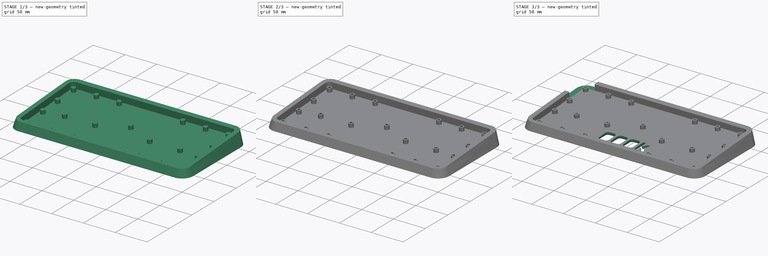
[diagram: build sequence overview — one tinted view per stage of 3, left to right]
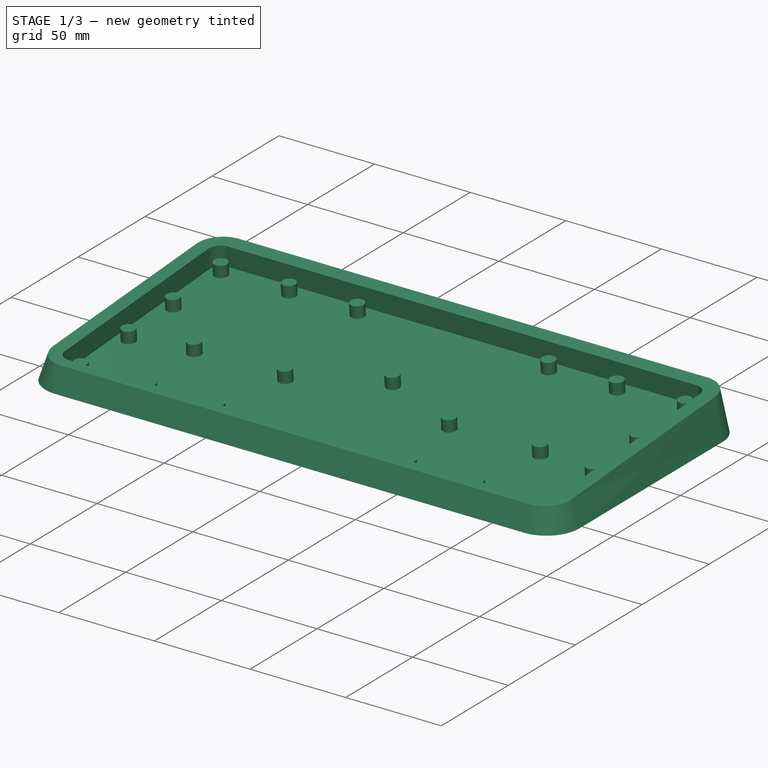
[diagram: stage 1 of 3 — iso view after this stage's code; geometry added in this stage tinted green]
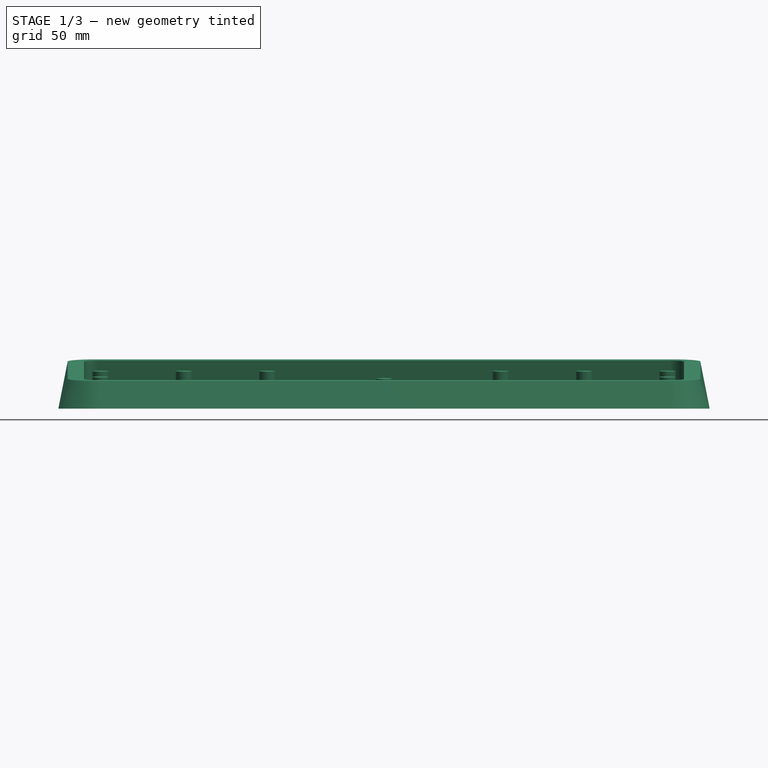
[diagram: stage 1 of 3 — front view after this stage's code; geometry added in this stage tinted green]
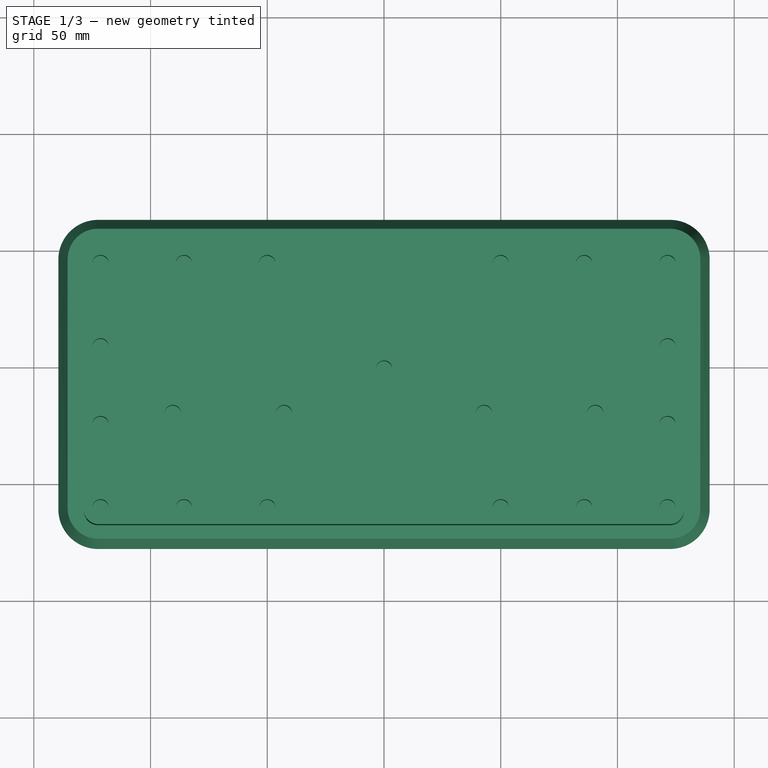
[diagram: stage 1 of 3 — top view after this stage's code; geometry added in this stage tinted green]
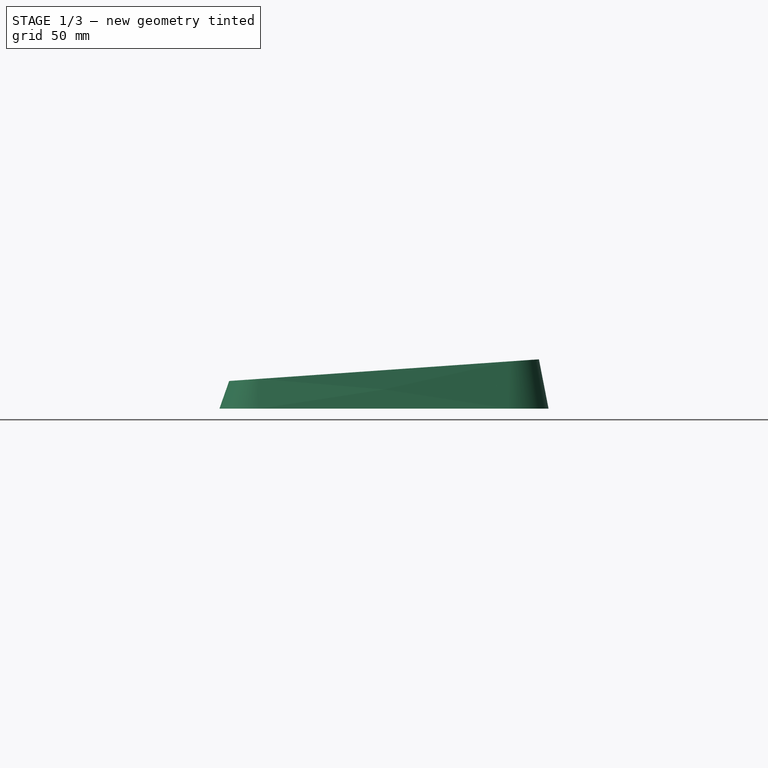
[diagram: stage 1 of 3 — right view after this stage's code; geometry added in this stage tinted green]
FCSTD DOCUMENT  (FreeCAD 0.20R)
Label: case
License: All rights reserved
LicenseURL: http://en.wikipedia.org/wiki/All_rights_reserved
objects: Sketcher::SketchObject×7, PartDesign::Pocket×3, PartDesign::AdditiveLoft×1, PartDesign::Pad×1, PartDesign::Hole×1, PartDesign::Chamfer×1, PartDesign::Fillet×1, PartDesign::Body×1
note: 24 computed .brp shape members not serialized (recipe doc carries the construction recipe); baked Part::Feature solids carry a one-line shape summary decoded from their .brp

FEATURE [Sketcher::SketchObject] Sketch001  label="Ext3"
  FullyConstrained = false
  MapMode = 5
  Support = -> [XY_Plane]
  sketch-geometry (8):
    g0: ArcOfCircle CenterX=-122.5 CenterY=46.3562 CenterZ=0 NormalX=0 NormalY=0 NormalZ=1 AngleXU=0 Radius=17 StartAngle=1.5708 EndAngle=3.14159
    g1: LineSegment StartX=-139.5 StartY=-60.6438 StartZ=0 EndX=-139.5 EndY=46.3562 EndZ=0
    g2: ArcOfCircle CenterX=-122.5 CenterY=-60.6438 CenterZ=0 NormalX=0 NormalY=0 NormalZ=1 AngleXU=0 Radius=17 StartAngle=3.14159 EndAngle=4.71239
    g3: LineSegment StartX=-122.5 StartY=63.3562 StartZ=0 EndX=122.5 EndY=63.3562 EndZ=0
    g4: LineSegment StartX=-122.5 StartY=-77.6438 StartZ=0 EndX=122.5 EndY=-77.6438 EndZ=0
    g5: LineSegment StartX=139.5 StartY=46.3562 StartZ=0 EndX=139.5 EndY=-60.6438 EndZ=0
    g6: ArcOfCircle CenterX=122.5 CenterY=46.3562 CenterZ=0 NormalX=0 NormalY=0 NormalZ=1 AngleXU=0 Radius=17 StartAngle=0 EndAngle=1.5708
    g7: ArcOfCircle CenterX=122.5 CenterY=-60.6438 CenterZ=0 NormalX=0 NormalY=0 NormalZ=1 AngleXU=0 Radius=17 StartAngle=4.71239 EndAngle=6.28319
  constraints (8):
    c: Coincident(g1,g2)
    c: Coincident(g0,g1)
    c: Coincident(g2,g4)
    c: Coincident(g0,g3)
    c: Coincident(g4,g7)
    c: Coincident(g3,g6)
    c: Coincident(g5,g7)
    c: Coincident(g5,g6)
FEATURE [Sketcher::SketchObject] Sketch002  label="Ext2"
  AttachmentOffset = pos=(0,0,17) rot=(1,0,0;0.069813rad)
  FullyConstrained = false
  MapMode = 5
  Placement = pos=(0,0,17) rot=(1,0,0;0.069813rad)
  Support = -> [XY_Plane]
  sketch-geometry (8):
    g0: ArcOfCircle CenterX=-122.5 CenterY=46.3562 CenterZ=0 NormalX=0 NormalY=0 NormalZ=1 AngleXU=0 Radius=13 StartAngle=1.5708 EndAngle=3.14159
    g1: ArcOfCircle CenterX=122.5 CenterY=46.3562 CenterZ=0 NormalX=0 NormalY=0 NormalZ=1 AngleXU=0 Radius=13 StartAngle=0 EndAngle=1.5708
    g2: LineSegment StartX=135.5 StartY=46.3562 StartZ=0 EndX=135.5 EndY=-60.6438 EndZ=0
    g3: ArcOfCircle CenterX=122.5 CenterY=-60.6438 CenterZ=0 NormalX=0 NormalY=0 NormalZ=1 AngleXU=0 Radius=13 StartAngle=4.71239 EndAngle=6.28319
    g4: LineSegment StartX=-122.5 StartY=-73.6438 StartZ=0 EndX=122.5 EndY=-73.6438 EndZ=0
    g5: ArcOfCircle CenterX=-122.5 CenterY=-60.6438 CenterZ=0 NormalX=0 NormalY=0 NormalZ=1 AngleXU=0 Radius=13 StartAngle=3.14159 EndAngle=4.71239
    g6: LineSegment StartX=-135.5 StartY=-60.6438 StartZ=0 EndX=-135.5 EndY=46.3562 EndZ=0
    g7: LineSegment StartX=-122.5 StartY=59.3562 StartZ=0 EndX=122.5 EndY=59.3562 EndZ=0
  constraints (8):
    c: Coincident(g5,g6)
    c: Coincident(g0,g6)
    c: Coincident(g4,g5)
    c: Coincident(g0,g7)
    c: Coincident(g3,g4)
    c: Coincident(g1,g7)
    c: Coincident(g2,g3)
    c: Coincident(g1,g2)
FEATURE [PartDesign::AdditiveLoft] AdditiveLoft
  Closed = true
  Profile = -> Sketch001
  Ruled = true
  Sections = -> [Sketch002]
FEATURE [Sketcher::SketchObject] Sketch003  label="Ext1"
  FullyConstrained = false
  MapMode = 5
  Placement = pos=(0,-1.18297,16.9173) rot=(1,0,0;0.069813rad)
  Support = -> [AdditiveLoft]
  sketch-geometry (8):
    g0: ArcOfCircle CenterX=122.5 CenterY=-60.6438 CenterZ=0 NormalX=0 NormalY=0 NormalZ=1 AngleXU=0 Radius=6 StartAngle=4.71239 EndAngle=6.28319
    g1: LineSegment StartX=128.5 StartY=46.3562 StartZ=0 EndX=128.5 EndY=-60.6438 EndZ=0
    g2: ArcOfCircle CenterX=-122.5 CenterY=46.3562 CenterZ=0 NormalX=0 NormalY=0 NormalZ=1 AngleXU=0 Radius=6 StartAngle=1.5708 EndAngle=3.14159
    g3: LineSegment StartX=-128.5 StartY=-60.6438 StartZ=0 EndX=-128.5 EndY=46.3562 EndZ=0
    g4: ArcOfCircle CenterX=-122.5 CenterY=-60.6438 CenterZ=0 NormalX=0 NormalY=0 NormalZ=1 AngleXU=0 Radius=6 StartAngle=3.14159 EndAngle=4.71239
    g5: LineSegment StartX=-122.5 StartY=-66.6438 StartZ=0 EndX=122.5 EndY=-66.6438 EndZ=0
    g6: LineSegment StartX=-122.5 StartY=52.3562 StartZ=0 EndX=122.5 EndY=52.3562 EndZ=0
    g7: ArcOfCircle CenterX=122.5 CenterY=46.3562 CenterZ=0 NormalX=0 NormalY=0 NormalZ=1 AngleXU=0 Radius=6 StartAngle=0 EndAngle=1.5708
  constraints (8):
    c: Coincident(g3,g4)
    c: Coincident(g2,g3)
    c: Coincident(g4,g5)
    c: Coincident(g2,g6)
    c: Coincident(g0,g5)
    c: Coincident(g6,g7)
    c: Coincident(g0,g1)
    c: Coincident(g1,g7)
FEATURE [PartDesign::Pocket] Pocket
  BaseFeature = -> AdditiveLoft
  Direction = (0,0.0697565,-0.997564)
  Length = 10
  Length2 = 5
  Profile = -> Sketch003
  ReferenceAxis = -> Sketch003 [N_Axis]
  Type = 0
FEATURE [Sketcher::SketchObject] Sketch  label="Troutrou"
  FullyConstrained = false
  MapMode = 5
  Placement = pos=(0,-0.485407,6.94164) rot=(1,0,0;0.069813rad)
  Support = -> [Pocket]
  sketch-geometry (21):
    g0: Circle CenterX=-50.0063 CenterY=-59.5313 CenterZ=0 NormalX=0 NormalY=0 NormalZ=-1 AngleXU=0 Radius=3.5
    g1: Circle CenterX=-42.8626 CenterY=-19.0501 CenterZ=0 NormalX=0 NormalY=0 NormalZ=-1 AngleXU=0 Radius=3.5
    g2: Circle CenterX=-50.0062 CenterY=45.2438 CenterZ=0 NormalX=0 NormalY=0 NormalZ=-1 AngleXU=0 Radius=3.5
    g3: Circle CenterX=-85.725 CenterY=45.2438 CenterZ=0 NormalX=0 NormalY=0 NormalZ=-1 AngleXU=0 Radius=3.5
    g4: Circle CenterX=-90.4876 CenterY=-19.0501 CenterZ=0 NormalX=0 NormalY=0 NormalZ=-1 AngleXU=0 Radius=3.5
    g5: Circle CenterX=-85.7251 CenterY=-59.5313 CenterZ=0 NormalX=0 NormalY=0 NormalZ=-1 AngleXU=0 Radius=3.5
    g6: Circle CenterX=-121.444 CenterY=-59.5313 CenterZ=0 NormalX=0 NormalY=0 NormalZ=-1 AngleXU=0 Radius=3.5
    g7: Circle CenterX=-121.444 CenterY=-23.8125 CenterZ=0 NormalX=0 NormalY=0 NormalZ=-1 AngleXU=0 Radius=3.5
    g8: Circle CenterX=-121.444 CenterY=9.525 CenterZ=0 NormalX=0 NormalY=0 NormalZ=-1 AngleXU=0 Radius=3.5
    g9: Circle CenterX=-121.444 CenterY=45.2438 CenterZ=0 NormalX=0 NormalY=0 NormalZ=-1 AngleXU=0 Radius=3.5
    g10: Circle CenterX=0 CenterY=0 CenterZ=0 NormalX=0 NormalY=0 NormalZ=-1 AngleXU=0 Radius=3.5
    g11: Circle CenterX=42.8625 CenterY=-19.0501 CenterZ=0 NormalX=0 NormalY=0 NormalZ=-1 AngleXU=0 Radius=3.5
    g12: Circle CenterX=50.0062 CenterY=-59.5313 CenterZ=0 NormalX=0 NormalY=0 NormalZ=-1 AngleXU=0 Radius=3.5
    g13: Circle CenterX=85.725 CenterY=-59.5313 CenterZ=0 NormalX=0 NormalY=0 NormalZ=-1 AngleXU=0 Radius=3.5
    g14: Circle CenterX=90.4875 CenterY=-19.0501 CenterZ=0 NormalX=0 NormalY=0 NormalZ=-1 AngleXU=0 Radius=3.5
    g15: Circle CenterX=50.0062 CenterY=45.2438 CenterZ=0 NormalX=0 NormalY=0 NormalZ=-1 AngleXU=0 Radius=3.5
    g16: Circle CenterX=85.725 CenterY=45.2438 CenterZ=0 NormalX=0 NormalY=0 NormalZ=-1 AngleXU=0 Radius=3.5
    g17: Circle CenterX=121.444 CenterY=45.2438 CenterZ=0 NormalX=0 NormalY=0 NormalZ=-1 AngleXU=0 Radius=3.5
    g18: Circle CenterX=121.444 CenterY=9.525 CenterZ=0 NormalX=0 NormalY=0 NormalZ=-1 AngleXU=0 Radius=3.5
    g19: Circle CenterX=121.444 CenterY=-23.8125 CenterZ=0 NormalX=0 NormalY=0 NormalZ=-1 AngleXU=0 Radius=3.5
    g20: Circle CenterX=121.444 CenterY=-59.5313 CenterZ=0 NormalX=0 NormalY=0 NormalZ=-1 AngleXU=0 Radius=3.5
  constraints (21):
    c: Equal(g0,g1)
    c: Equal(g1,g2)
    c: Equal(g2,g3)
    c: Equal(g3,g4)
    c: Equal(g4,g5)
    c: Equal(g5,g6)
    c: Equal(g6,g7)
    c: Equal(g7,g8)
    c: Equal(g8,g9)
    c: Equal(g9,g10)
    c: Equal(g10,g11)
    c: Equal(g11,g12)
    c: Equal(g12,g13)
    c: Equal(g13,g14)
    c: Equal(g14,g15)
    c: Equal(g15,g16)
    c: Equal(g16,g17)
    c: Equal(g17,g18)
    c: Equal(g18,g19)
    c: Equal(g19,g20)
    c: Diameter(g9) = 7
FEATURE [PartDesign::Pad] Pad
  BaseFeature = -> Pocket
  Direction = (0,-0.0697565,0.997564)
  Length = 6
  Length2 = 10
  Profile = -> Sketch
  ReferenceAxis = -> Sketch [N_Axis]
  Type = 0
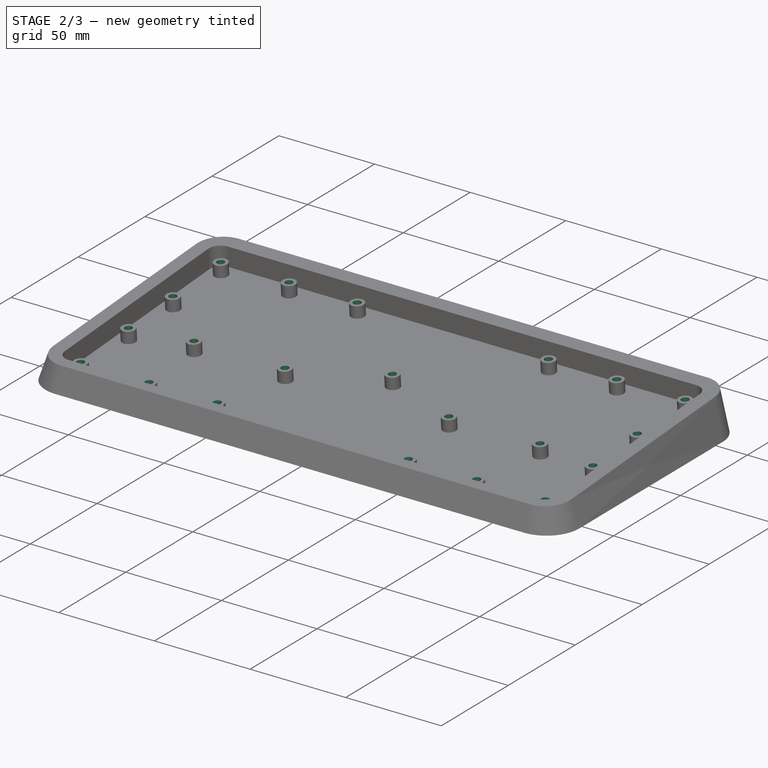
[diagram: stage 2 of 3 — iso view after this stage's code; geometry added in this stage tinted green]
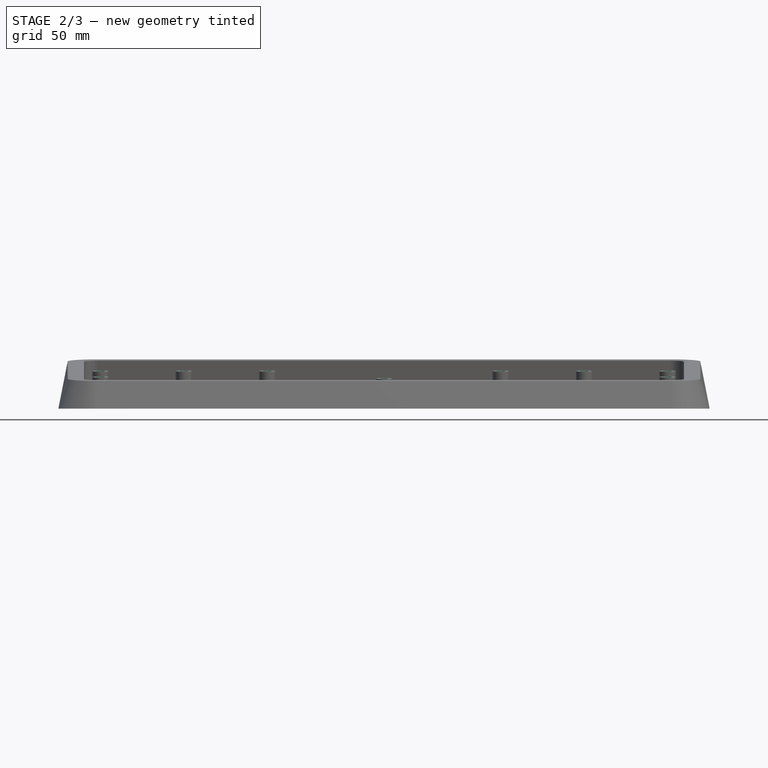
[diagram: stage 2 of 3 — front view after this stage's code; geometry added in this stage tinted green]
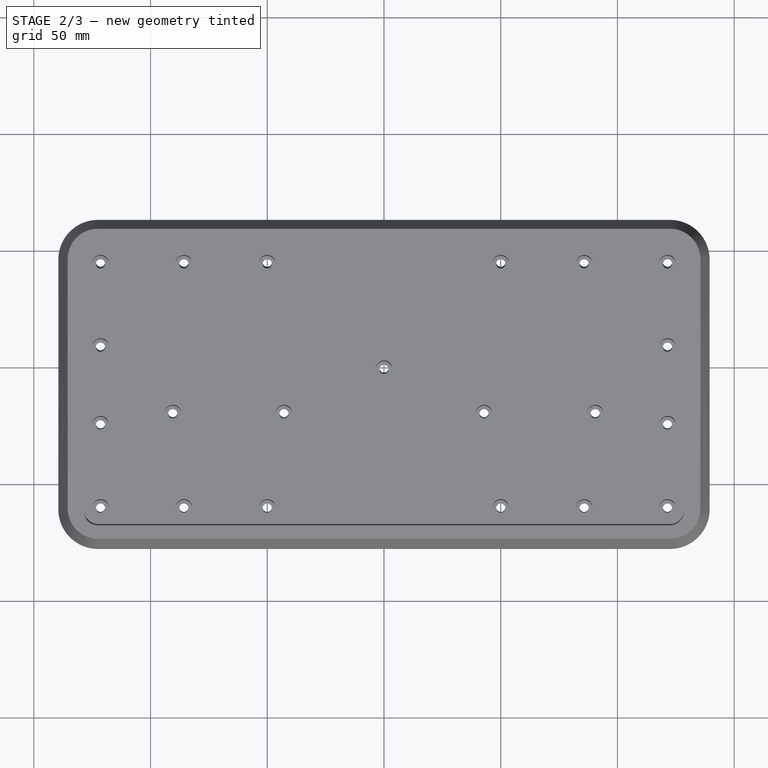
[diagram: stage 2 of 3 — top view after this stage's code; geometry added in this stage tinted green]
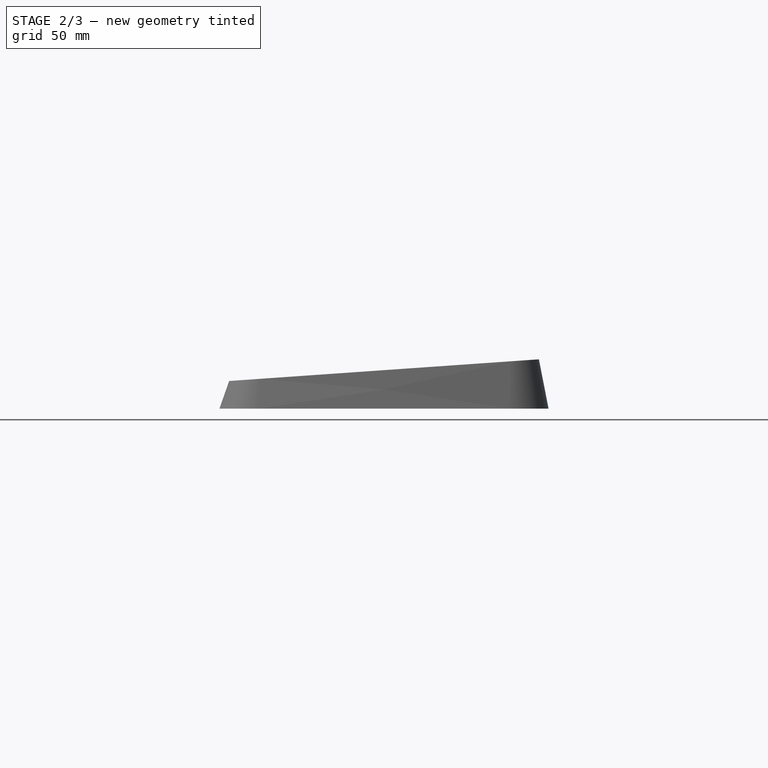
[diagram: stage 2 of 3 — right view after this stage's code; geometry added in this stage tinted green]
FEATURE [Sketcher::SketchObject] Sketch004
  ExternalGeometry = -> [Pad]
  FullyConstrained = true
  MapMode = 5
  Placement = pos=(0,-0.903945,12.927) rot=(1,0,0;0.069813rad)
  Support = -> [Pad]
  sketch-geometry (21):
    g0: Circle CenterX=121.444 CenterY=-59.5313 CenterZ=0 NormalX=0 NormalY=0 NormalZ=1 AngleXU=0 Radius=1.75
    g1: Circle CenterX=121.444 CenterY=-23.8125 CenterZ=0 NormalX=0 NormalY=0 NormalZ=1 AngleXU=0 Radius=1.75
    g2: Circle CenterX=121.444 CenterY=9.525 CenterZ=0 NormalX=0 NormalY=0 NormalZ=1 AngleXU=0 Radius=1.75
    g3: Circle CenterX=121.444 CenterY=45.2438 CenterZ=0 NormalX=0 NormalY=0 NormalZ=1 AngleXU=0 Radius=1.75
    g4: Circle CenterX=85.725 CenterY=45.2438 CenterZ=0 NormalX=0 NormalY=0 NormalZ=1 AngleXU=0 Radius=1.75
    g5: Circle CenterX=90.4875 CenterY=-19.0501 CenterZ=0 NormalX=0 NormalY=0 NormalZ=1 AngleXU=0 Radius=1.75
    g6: Circle CenterX=85.725 CenterY=-59.5313 CenterZ=0 NormalX=0 NormalY=0 NormalZ=1 AngleXU=0 Radius=1.75
    g7: Circle CenterX=50.0062 CenterY=-59.5313 CenterZ=0 NormalX=0 NormalY=0 NormalZ=1 AngleXU=0 Radius=1.75
    g8: Circle CenterX=42.8625 CenterY=-19.0501 CenterZ=0 NormalX=0 NormalY=0 NormalZ=1 AngleXU=0 Radius=1.75
    g9: Circle CenterX=0 CenterY=0 CenterZ=0 NormalX=0 NormalY=0 NormalZ=1 AngleXU=0 Radius=1.75
    g10: Circle CenterX=-121.444 CenterY=-23.8125 CenterZ=0 NormalX=0 NormalY=0 NormalZ=1 AngleXU=0 Radius=1.75
    g11: Circle CenterX=-50.0063 CenterY=-59.5313 CenterZ=0 NormalX=0 NormalY=0 NormalZ=1 AngleXU=0 Radius=1.75
    g12: Circle CenterX=-50.0062 CenterY=45.2438 CenterZ=0 NormalX=0 NormalY=0 NormalZ=1 AngleXU=0 Radius=1.75
    g13: Circle CenterX=-85.725 CenterY=45.2438 CenterZ=0 NormalX=0 NormalY=0 NormalZ=1 AngleXU=0 Radius=1.75
    g14: Circle CenterX=-121.444 CenterY=45.2438 CenterZ=0 NormalX=0 NormalY=0 NormalZ=1 AngleXU=0 Radius=1.75
    g15: Circle CenterX=-121.444 CenterY=9.525 CenterZ=0 NormalX=0 NormalY=0 NormalZ=1 AngleXU=0 Radius=1.75
    g16: Circle CenterX=-90.4876 CenterY=-19.0501 CenterZ=0 NormalX=0 NormalY=0 NormalZ=1 AngleXU=0 Radius=1.75
    g17: Circle CenterX=-121.444 CenterY=-59.5313 CenterZ=0 NormalX=0 NormalY=0 NormalZ=1 AngleXU=0 Radius=1.75
    g18: Circle CenterX=50.0062 CenterY=45.2438 CenterZ=0 NormalX=0 NormalY=0 NormalZ=1 AngleXU=0 Radius=1.75
    g19: Circle CenterX=-42.8626 CenterY=-19.0501 CenterZ=0 NormalX=0 NormalY=0 NormalZ=1 AngleXU=0 Radius=1.75
    g20: Circle CenterX=-85.7251 CenterY=-59.5313 CenterZ=0 NormalX=0 NormalY=0 NormalZ=1 AngleXU=0 Radius=1.75
  constraints (42):
    c: Coincident(g0,g-23)
    c: Coincident(g1,g-20)
    c: Coincident(g2,g-21)
    c: Coincident(g3,g-22)
    c: Coincident(g4,g-17)
    c: Coincident(g5,g-18)
    c: Coincident(g6,g-19)
    c: Coincident(g7,g-14)
    c: Coincident(g8,g-15)
    c: Coincident(g9,g-16)
    c: Coincident(g10,g-13)
    c: Coincident(g11,g-11)
    c: Coincident(g12,g-10)
    c: Coincident(g13,g-9)
    c: Coincident(g14,g-3)
    c: Coincident(g15,g-4)
    c: Coincident(g16,g-5)
    c: Coincident(g17,g-8)
    c: Coincident(g18,g-12)
    c: Coincident(g19,g-7)
    c: Coincident(g20,g-6)
    c: Equal(g3,g2)
    c: Equal(g2,g4)
    c: Equal(g4,g5)
    c: Equal(g5,g1)
    c: Equal(g1,g0)
    c: Equal(g0,g6)
    c: Equal(g6,g7)
    c: Equal(g7,g8)
    c: Equal(g8,g9)
    c: Equal(g9,g10)
    c: Equal(g10,g12)
    c: Equal(g12,g11)
    c: Equal(g11,g18)
    c: Equal(g18,g17)
    c: Equal(g17,g19)
    c: Equal(g19,g13)
    c: Equal(g13,g14)
    c: Equal(g14,g15)
    c: Equal(g15,g16)
    c: Equal(g16,g20)
    c: Diameter(g13) = 3.5
FEATURE [PartDesign::Hole] Hole
  BaseFeature = -> Pad
  CustomThreadClearance = 0
  Depth = 633.677
  DepthType = 1
  Diameter = 3.9
  DrillForDepth = false
  DrillPoint = 1
  DrillPointAngle = 118
  HoleCutCountersinkAngle = 90
  HoleCutCustomValues = false
  HoleCutDepth = 0
  HoleCutDiameter = 6.1
  HoleCutType = 0
  ModelThread = false
  Profile = -> Sketch004
  Tapered = false
  TaperedAngle = 90
  ThreadClass = 0
  ThreadDepth = 633.677
  ThreadDepthType = 0
  ThreadDirection = 0
  ThreadFit = 0
  ThreadSize = 10
  ThreadType = 1
  Threaded = false
  UseCustomThreadClearance = false
FEATURE [PartDesign::Chamfer] Chamfer
  Angle = 45
  Base = -> Hole [Edge15,Edge16,Edge17,Edge19,Edge26,Edge29,Edge28,Edge20,Edge18,Edge27,Edge25,Edge24,Edge14,Edge11,Edge10,Edge13,Edge23,Edge22,Edge21,Edge12,Edge9]
  BaseFeature = -> Hole
  ChamferType = 0
  FlipDirection = false
  Size = 3
  Size2 = 2
  SupportTransform = false
  UseAllEdges = false
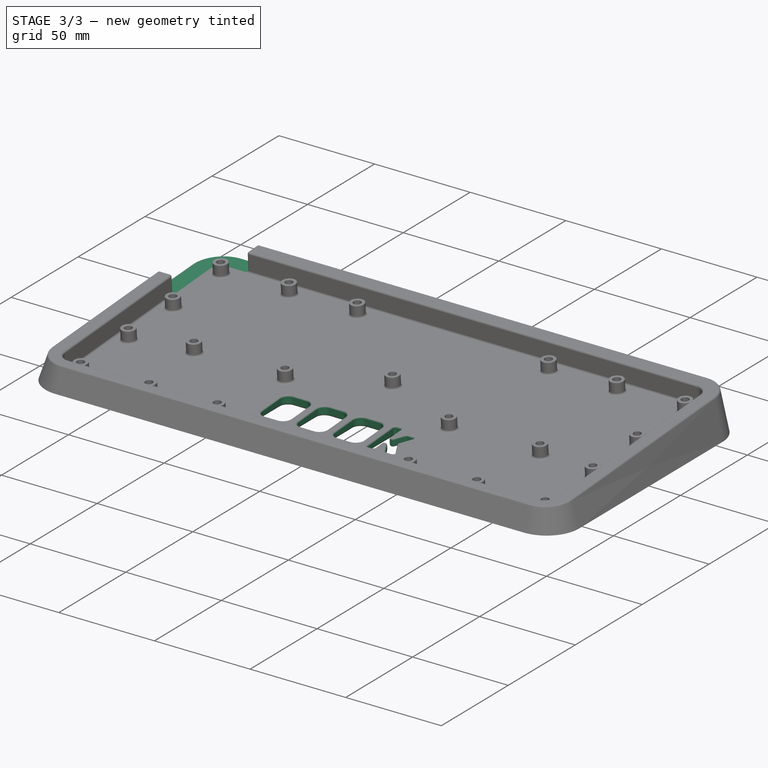
[diagram: stage 3 of 3 — iso view after this stage's code; geometry added in this stage tinted green]
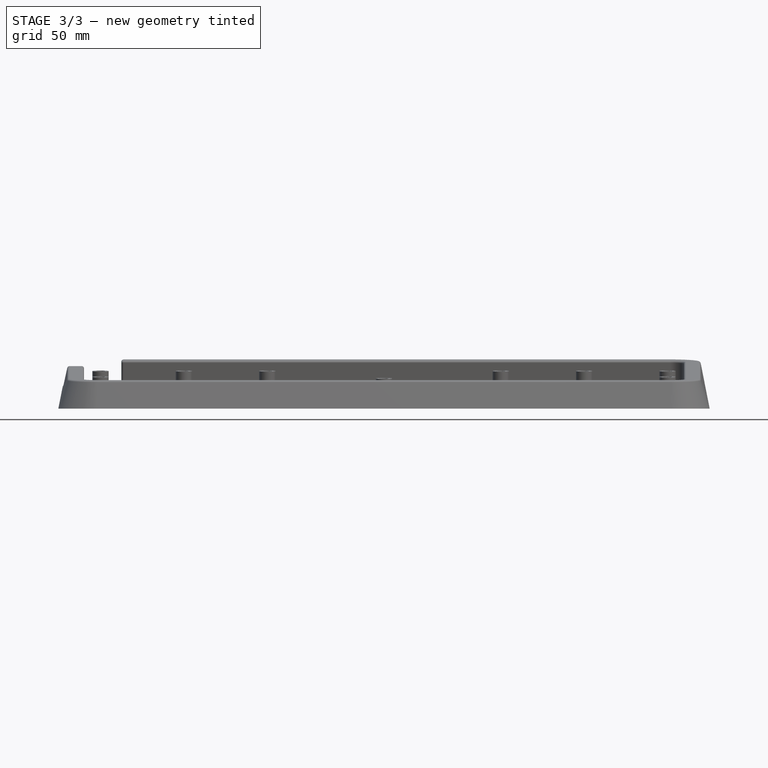
[diagram: stage 3 of 3 — front view after this stage's code; geometry added in this stage tinted green]
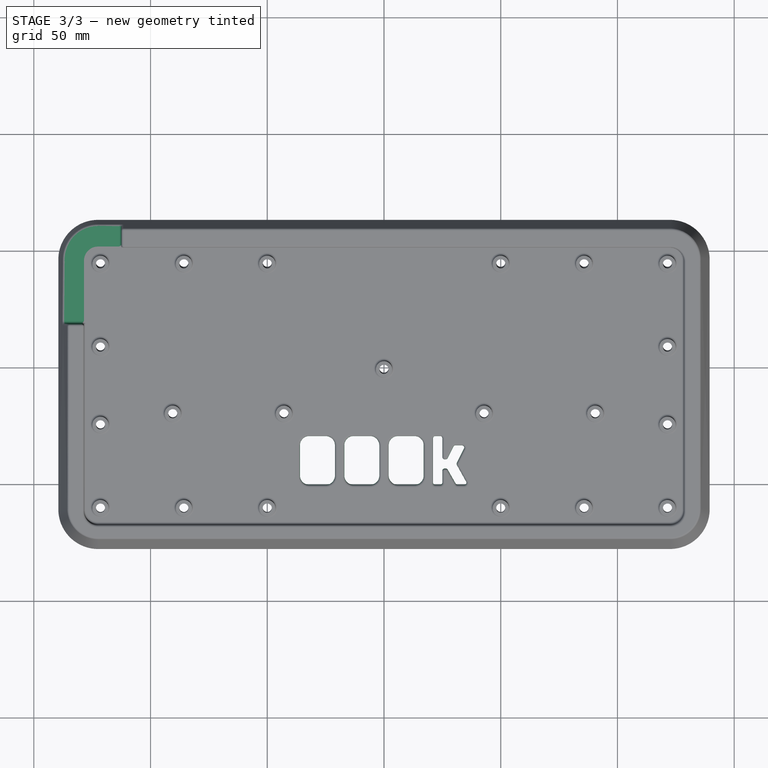
[diagram: stage 3 of 3 — top view after this stage's code; geometry added in this stage tinted green]
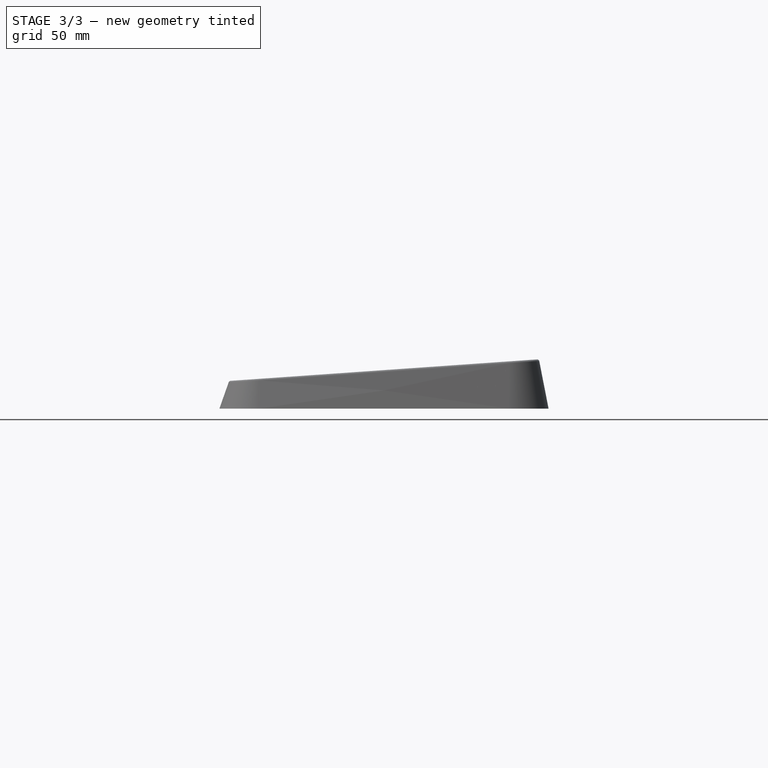
[diagram: stage 3 of 3 — right view after this stage's code; geometry added in this stage tinted green]
FEATURE [Sketcher::SketchObject] Sketch005
  ExternalGeometry = -> [Chamfer]
  FullyConstrained = false
  MapMode = 5
  Placement = pos=(0,-1.18297,16.9173) rot=(1,0,0;0.069813rad)
  Support = -> [Chamfer]
  sketch-geometry (8):
    g0: LineSegment StartX=-139.5 StartY=63.2019 StartZ=0 EndX=-139.5 EndY=19.525 EndZ=0
    g1: LineSegment StartX=-139.5 StartY=19.525 StartZ=0 EndX=-122.5 EndY=19.525 EndZ=0
    g2: LineSegment StartX=-112.5 StartY=50.2019 StartZ=0 EndX=-126.5 EndY=50.2019 EndZ=0
    g3: LineSegment StartX=-126.5 StartY=50.2019 StartZ=0 EndX=-126.5 EndY=40.2019 EndZ=0
    g4: LineSegment StartX=-126.5 StartY=40.2019 StartZ=0 EndX=-122.5 EndY=40.2019 EndZ=0
    g5: LineSegment StartX=-122.5 StartY=40.2019 StartZ=0 EndX=-122.5 EndY=19.525 EndZ=0
    g6: LineSegment StartX=-139.5 StartY=63.2019 StartZ=0 EndX=-112.5 EndY=63.2019 EndZ=0
    g7: LineSegment StartX=-112.5 StartY=63.2019 StartZ=0 EndX=-112.5 EndY=50.2019 EndZ=0
  constraints (22):
    c: Coincident(g0,g1)
    c: Horizontal(g1)
    c: Vertical(g0)
    c: PointOnObject(g0,g-5)
    c: DistanceY(g-7,g1) = 10
    c: Coincident(g2,g3)
    c: Vertical(g3)
    c: Coincident(g3,g4)
    c: Coincident(g4,g5)
    c: Coincident(g5,g1)
    c: Vertical(g5)
    c: Horizontal(g4)
    c: Horizontal(g2)
    c: DistanceY(g3,g3) = 10
    c: DistanceX(g0,g2) = 13
    c: Coincident(g0,g6)
    c: PointOnObject(g6,g-6)
    c: Horizontal(g6)
    c: Coincident(g7,g6)
    c: Coincident(g7,g2)
    c: Vertical(g7)
    c: DistanceX(g-6,g6) = 10
FEATURE [PartDesign::Pocket] Pocket001
  BaseFeature = -> Chamfer
  Direction = (0,0.0697565,-0.997564)
  Length = 0
  Length2 = 5
  Profile = -> Sketch005
  ReferenceAxis = -> Sketch005 [N_Axis]
  Type = 3
  UpToFace = -> Chamfer [Face83]
FEATURE [Sketcher::SketchObject] Sketch006
  AttachmentOffset = pos=(0,-40,0) rot=(0,0,1;0rad)
  FullyConstrained = false
  MapMode = 5
  Placement = pos=(0,-40.388,4.15138) rot=(1,0,0;0.069813rad)
  Support = -> [Pocket001]
  sketch-geometry (50):
    g0: ArcOfCircle CenterX=26.382 CenterY=2 CenterZ=0 NormalX=0 NormalY=0 NormalZ=1 AngleXU=0 Radius=1 StartAngle=4.71239 EndAngle=5.81954
    g1: ArcOfCircle CenterX=-25 CenterY=7 CenterZ=0 NormalX=0 NormalY=0 NormalZ=1 AngleXU=0 Radius=4 StartAngle=0 EndAngle=1.5708
    g2: LineSegment StartX=-32 StartY=11 StartZ=0 EndX=-25 EndY=11 EndZ=0
    g3: ArcOfCircle CenterX=-32 CenterY=7 CenterZ=0 NormalX=0 NormalY=0 NormalZ=1 AngleXU=0 Radius=4 StartAngle=1.5708 EndAngle=3.14159
    g4: LineSegment StartX=-36 StartY=7 StartZ=0 EndX=-36 EndY=-6 EndZ=0
    g5: ArcOfCircle CenterX=-32 CenterY=-6 CenterZ=0 NormalX=0 NormalY=0 NormalZ=1 AngleXU=0 Radius=4 StartAngle=3.14159 EndAngle=4.71239
    g6: LineSegment StartX=-32 StartY=-10 StartZ=0 EndX=-25 EndY=-10 EndZ=0
    g7: ArcOfCircle CenterX=-25 CenterY=-6 CenterZ=0 NormalX=0 NormalY=0 NormalZ=1 AngleXU=0 Radius=4 StartAngle=4.71239 EndAngle=6.28319
    g8: LineSegment StartX=-21 StartY=7 StartZ=0 EndX=-21 EndY=-6 EndZ=0
    g9: ArcOfCircle CenterX=-13 CenterY=7 CenterZ=0 NormalX=0 NormalY=0 NormalZ=1 AngleXU=0 Radius=4 StartAngle=1.5708 EndAngle=3.14159
    g10: LineSegment StartX=-6 StartY=11 StartZ=0 EndX=-13 EndY=11 EndZ=0
    g11: ArcOfCircle CenterX=-6 CenterY=7 CenterZ=0 NormalX=0 NormalY=0 NormalZ=1 AngleXU=0 Radius=4 StartAngle=0 EndAngle=1.5708
    g12: LineSegment StartX=-2 StartY=7 StartZ=0 EndX=-2 EndY=-6 EndZ=0
    g13: ArcOfCircle CenterX=-6 CenterY=-6 CenterZ=0 NormalX=0 NormalY=0 NormalZ=1 AngleXU=0 Radius=4 StartAngle=4.71239 EndAngle=6.28319
    g14: LineSegment StartX=-6 StartY=-10 StartZ=0 EndX=-13 EndY=-10 EndZ=0
    g15: ArcOfCircle CenterX=-13 CenterY=-6 CenterZ=0 NormalX=0 NormalY=0 NormalZ=1 AngleXU=0 Radius=4 StartAngle=3.14159 EndAngle=4.71239
    g16: LineSegment StartX=-17 StartY=7 StartZ=0 EndX=-17 EndY=-6 EndZ=0
    g17: ArcOfCircle CenterX=13 CenterY=7 CenterZ=0 NormalX=0 NormalY=0 NormalZ=1 AngleXU=0 Radius=4 StartAngle=0 EndAngle=1.5708
    g18: LineSegment StartX=6 StartY=11 StartZ=0 EndX=13 EndY=11 EndZ=0
    g19: ArcOfCircle CenterX=6 CenterY=7 CenterZ=0 NormalX=0 NormalY=0 NormalZ=1 AngleXU=0 Radius=4 StartAngle=1.5708 EndAngle=3.14159
    g20: LineSegment StartX=2 StartY=7 StartZ=0 EndX=2 EndY=-6 EndZ=0
    g21: ArcOfCircle CenterX=6 CenterY=-6 CenterZ=0 NormalX=0 NormalY=0 NormalZ=1 AngleXU=0 Radius=4 StartAngle=3.14159 EndAngle=4.71239
    g22: LineSegment StartX=6 StartY=-10 StartZ=0 EndX=13 EndY=-10 EndZ=0
    g23: ArcOfCircle CenterX=13 CenterY=-6 CenterZ=0 NormalX=0 NormalY=0 NormalZ=1 AngleXU=0 Radius=4 StartAngle=4.71239 EndAngle=6.28319
    g24: LineSegment StartX=17 StartY=7 StartZ=0 EndX=17 EndY=-6 EndZ=0
    g25: ArcOfCircle CenterX=26 CenterY=2 CenterZ=0 NormalX=0 NormalY=0 NormalZ=1 AngleXU=0 Radius=1 StartAngle=3.14159 EndAngle=4.71239
    g26: ArcOfCircle CenterX=31.5803 CenterY=-9 CenterZ=0 NormalX=0 NormalY=0 NormalZ=1 AngleXU=0 Radius=1 StartAngle=3.66074 EndAngle=4.71239
    g27: ArcOfCircle CenterX=26 CenterY=-4 CenterZ=0 NormalX=0 NormalY=0 NormalZ=1 AngleXU=0 Radius=1 StartAngle=1.5708 EndAngle=3.14159
    g28: LineSegment StartX=26 StartY=-3 StartZ=0 EndX=26.4197 EndY=-3 EndZ=0
    g29: LineSegment StartX=30.7121 StartY=-9.49614 StartZ=0 EndX=27.2879 EndY=-3.50386 EndZ=0
    g30: ArcOfCircle CenterX=26.4197 CenterY=-4 CenterZ=0 NormalX=0 NormalY=0 NormalZ=1 AngleXU=0 Radius=1 StartAngle=0.519146 EndAngle=1.5708
    g31: LineSegment StartX=25 StartY=-4 StartZ=0 EndX=25 EndY=-9 EndZ=0
    g32: ArcOfCircle CenterX=24 CenterY=-9 CenterZ=0 NormalX=0 NormalY=0 NormalZ=1 AngleXU=0 Radius=1 StartAngle=4.71239 EndAngle=6.28319
    g33: LineSegment StartX=24 StartY=-10 StartZ=0 EndX=22 EndY=-10 EndZ=0
    g34: ArcOfCircle CenterX=22 CenterY=-9 CenterZ=0 NormalX=0 NormalY=0 NormalZ=1 AngleXU=0 Radius=1 StartAngle=3.14159 EndAngle=4.71239
    g35: LineSegment StartX=34.3005 StartY=-10 StartZ=0 EndX=31.5803 EndY=-10 EndZ=0
    g36: ArcOfCircle CenterX=34.3005 CenterY=-9 CenterZ=0 NormalX=0 NormalY=0 NormalZ=1 AngleXU=0 Radius=1 StartAngle=4.71239 EndAngle=6.79028
    g37: ArcOfCircle CenterX=33.382 CenterY=6 CenterZ=0 NormalX=0 NormalY=0 NormalZ=1 AngleXU=0 Radius=1 StartAngle=5.81954 EndAngle=7.85398
    g38: LineSegment StartX=31.2359 StartY=-0.528226 StartZ=0 EndX=34.2764 EndY=5.55279 EndZ=0
    g39: LineSegment StartX=31.2562 StartY=-1.46108 StartZ=0 EndX=35.1746 EndY=-8.51436 EndZ=0
    g40: ArcOfCircle CenterX=32.1303 CenterY=-0.97544 CenterZ=0 NormalX=0 NormalY=0 NormalZ=1 AngleXU=0 Radius=1 StartAngle=2.67795 EndAngle=3.64869
    g41: LineSegment StartX=21 StartY=-9 StartZ=0 EndX=21 EndY=10 EndZ=0
    g42: ArcOfCircle CenterX=22 CenterY=10 CenterZ=0 NormalX=0 NormalY=0 NormalZ=1 AngleXU=0 Radius=1 StartAngle=1.5708 EndAngle=3.14159
    g43: LineSegment StartX=22 StartY=11 StartZ=0 EndX=24 EndY=11 EndZ=0
    g44: LineSegment StartX=25 StartY=10 StartZ=0 EndX=25 EndY=2 EndZ=0
    g45: ArcOfCircle CenterX=24 CenterY=10 CenterZ=0 NormalX=0 NormalY=0 NormalZ=1 AngleXU=0 Radius=1 StartAngle=0 EndAngle=1.5708
    g46: LineSegment StartX=30.618 StartY=7 StartZ=0 EndX=33.382 EndY=7 EndZ=0
    g47: ArcOfCircle CenterX=30.618 CenterY=6 CenterZ=0 NormalX=0 NormalY=0 NormalZ=1 AngleXU=0 Radius=1 StartAngle=1.5708 EndAngle=2.67795
    g48: LineSegment StartX=29.7236 StartY=6.44721 StartZ=0 EndX=27.2764 EndY=1.55279 EndZ=0
    g49: LineSegment StartX=26 StartY=1 StartZ=0 EndX=26.382 EndY=1 EndZ=0
FEATURE [PartDesign::Pocket] Pocket002
  BaseFeature = -> Pocket001
  Direction = (0,0.0697565,-0.997564)
  Length = 2
  Length2 = 5
  Profile = -> Sketch006
  ReferenceAxis = -> Sketch006 [N_Axis]
  Type = 1
FEATURE [PartDesign::Fillet] Fillet
  Base = -> Pocket002 [Face88,Face81,Face82,Face84,Face83,Edge19,Edge21,Edge35,Edge43]
  BaseFeature = -> Pocket002
  Radius = 1
  SupportTransform = false
  UseAllEdges = false
FEATURE [PartDesign::Body] Body
  Group = -> [Sketch,Sketch001,Sketch002,Sketch003,AdditiveLoft,Pocket,Pad,Sketch004,Hole,Chamfer,Sketch005,Pocket001,Sketch006,Pocket002,Fillet]
  Origin = -> Origin
  Tip = -> Fillet
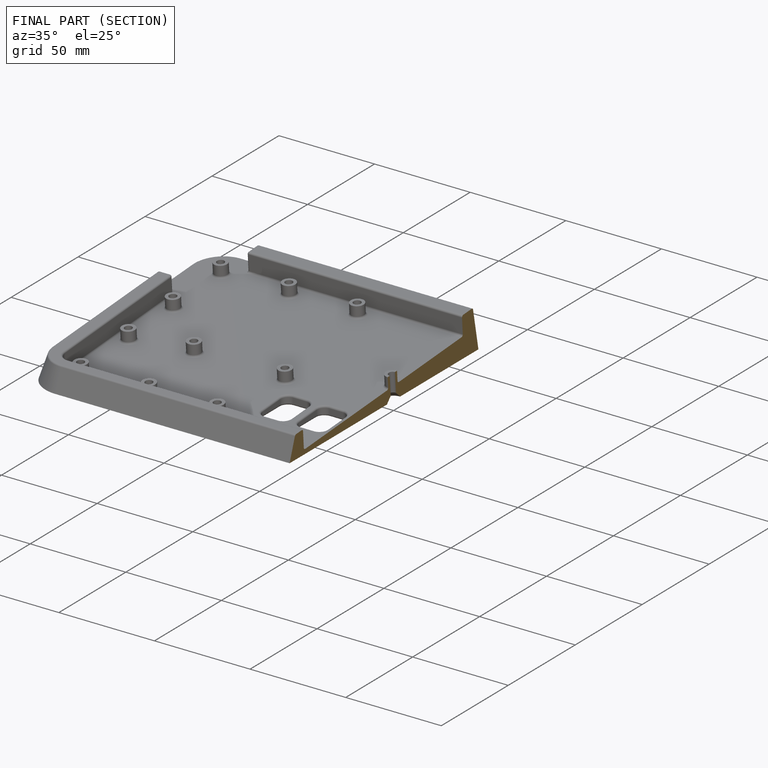
[diagram: finished part — half-section view (interior)]
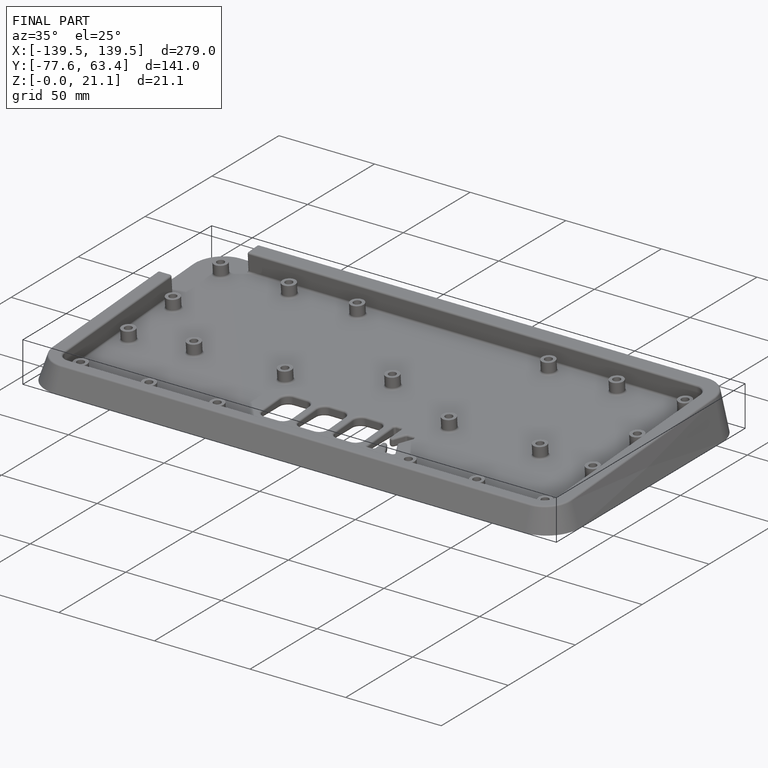
[diagram: finished part — iso view with bounding-box wireframe]
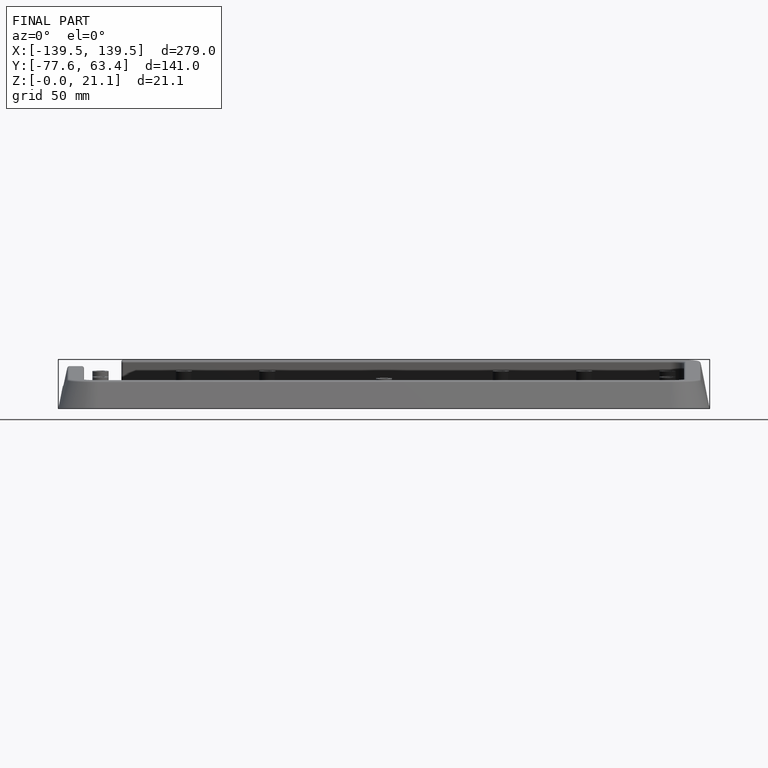
[diagram: finished part — front view with bounding-box wireframe]
